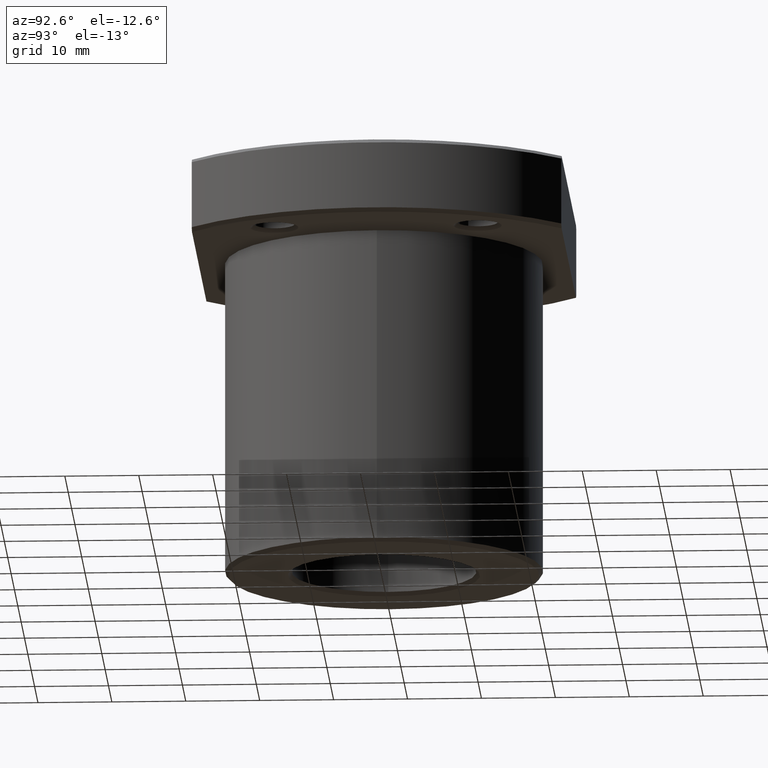
[diagram: clean part render]
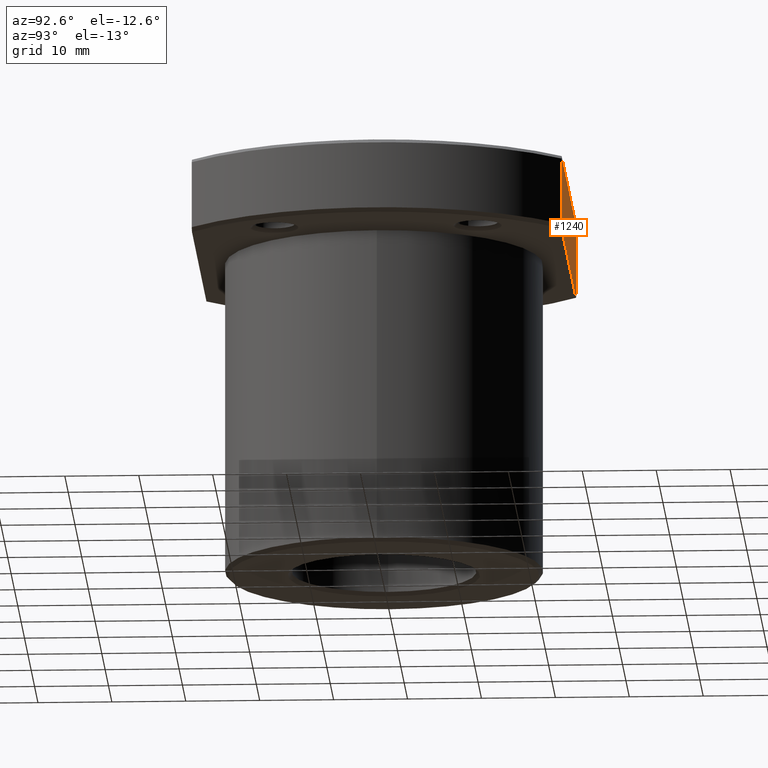
[diagram: same view with one face highlighted and labeled with its STEP entity id]
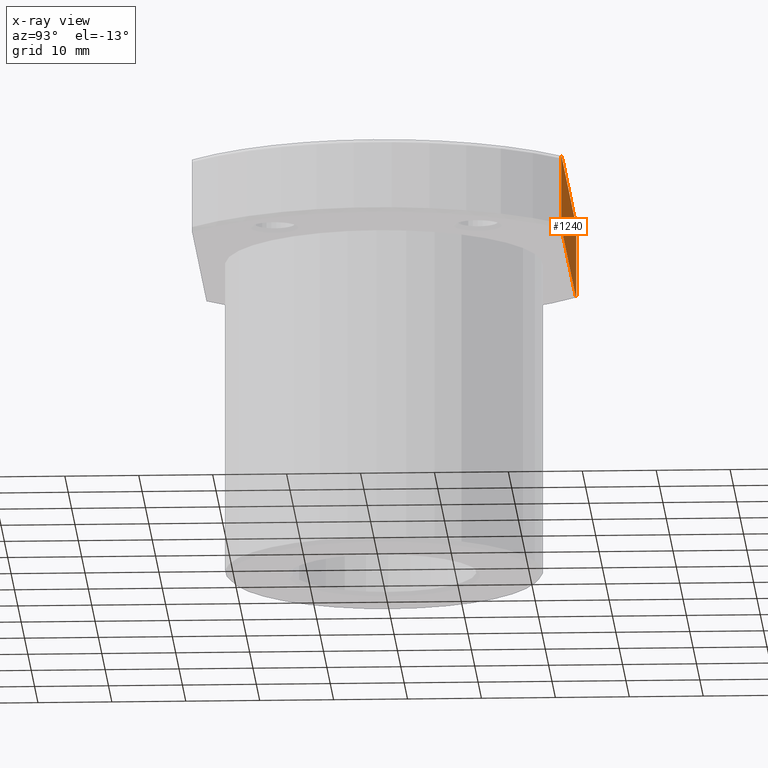
[diagram: x-ray of the same camera — body ghosted, the highlighted face saturated]
A machine part, auxiliary view. The second image highlights one B-rep face of the part: STEP entity #1240.
The next image is the same camera in x-ray: the body ghosted, the highlighted face saturated — about 0% of this face is hidden behind the body in this view.
In plain terms, the highlighted planar face has unit normal (0, -1, 0).
Its self-contained STEP definition (entity closure, byte-faithful):
#1220=AXIS2_PLACEMENT_3D('Plane Axis2P3D',#1217,#1218,#1219) ;
#851=CARTESIAN_POINT('Vertex',(21.5406592285,25.,53.)) ;
#866=CARTESIAN_POINT('Vertex',(22.299103121,25.,52.5)) ;
#870=CARTESIAN_POINT('Control Point',(22.299103121,25.,52.5)) ;
#871=CARTESIAN_POINT('Control Point',(22.0441034412,25.,52.6697392285)) ;
#872=CARTESIAN_POINT('Control Point',(21.7912860219,25.0000002817,52.8364038391)) ;
#873=CARTESIAN_POINT('Control Point',(21.5406589016,25.0000002817,53.)) ;
#891=CARTESIAN_POINT('Vertex',(-21.5406592285,25.,53.)) ;
#897=CARTESIAN_POINT('Control Point',(-22.299103121,25.,52.5)) ;
#898=CARTESIAN_POINT('Control Point',(-22.0441036981,25.,52.6697390575)) ;
#899=CARTESIAN_POINT('Control Point',(-21.7912863985,24.9999997418,52.8364039975)) ;
#900=CARTESIAN_POINT('Control Point',(-21.5406595282,24.9999997418,53.)) ;
#901=CARTESIAN_POINT('Vertex',(-22.299103121,25.,52.5)) ;
#929=CARTESIAN_POINT('Line Origine',(22.299103121,25.,48.)) ;
#933=CARTESIAN_POINT('Vertex',(22.299103121,25.,43.5)) ;
#961=CARTESIAN_POINT('Control Point',(22.2991034477,24.9999997086,43.5)) ;
#962=CARTESIAN_POINT('Control Point',(22.0441037667,24.9999997086,43.3302607682)) ;
#963=CARTESIAN_POINT('Control Point',(21.79128635,25.,43.1635961642)) ;
#964=CARTESIAN_POINT('Control Point',(21.5406592285,25.,43.)) ;
#965=CARTESIAN_POINT('Vertex',(21.5406592285,25.,43.)) ;
#1041=CARTESIAN_POINT('Line Origine',(3.5527136788E-015,25.,53.)) ;
#1147=CARTESIAN_POINT('Line Origine',(-22.299103121,25.,48.)) ;
#1151=CARTESIAN_POINT('Vertex',(-22.299103121,25.,43.5)) ;
#1175=CARTESIAN_POINT('Vertex',(-21.5406592285,25.,43.)) ;
#1180=CARTESIAN_POINT('Line Origine',(3.5527136788E-015,25.,43.)) ;
#1217=CARTESIAN_POINT('Axis2P3D Location',(-22.299103121,25.,43.)) ;
#1223=CARTESIAN_POINT('Control Point',(-22.299103121,25.,43.5)) ;
#1224=CARTESIAN_POINT('Control Point',(-22.1461034681,25.,43.3981565674)) ;
#1225=CARTESIAN_POINT('Control Point',(-21.9937619802,25.,43.2972376869)) ;
#1226=CARTESIAN_POINT('Control Point',(-21.8420646648,25.,43.197233163)) ;
#1227=CARTESIAN_POINT('Control Point',(-21.6910353499,25.,43.0981575996)) ;
#1228=CARTESIAN_POINT('Control Point',(-21.5406592285,25.,43.)) ;
#930=DIRECTION('Vector Direction',(0.,0.,1.)) ;
#1042=DIRECTION('Vector Direction',(1.,0.,0.)) ;
#1148=DIRECTION('Vector Direction',(0.,0.,1.)) ;
#1181=DIRECTION('Vector Direction',(1.,0.,0.)) ;
#1218=DIRECTION('Axis2P3D Direction',(0.,-1.,0.)) ;
#1219=DIRECTION('Axis2P3D XDirection',(1.,0.,0.)) ;
#931=VECTOR('Line Direction',#930,1.) ;
#1043=VECTOR('Line Direction',#1042,1.) ;
#1149=VECTOR('Line Direction',#1148,1.) ;
#1182=VECTOR('Line Direction',#1181,1.) ;
#1231=ORIENTED_EDGE('',*,*,#1229,.F.) ;
#1232=ORIENTED_EDGE('',*,*,#1153,.T.) ;
#1233=ORIENTED_EDGE('',*,*,#903,.F.) ;
#1234=ORIENTED_EDGE('',*,*,#1045,.F.) ;
#1235=ORIENTED_EDGE('',*,*,#874,.F.) ;
#1236=ORIENTED_EDGE('',*,*,#935,.F.) ;
#1237=ORIENTED_EDGE('',*,*,#967,.F.) ;
#1238=ORIENTED_EDGE('',*,*,#1184,.T.) ;
#1240=ADVANCED_FACE('',(#1239),#1221,.F.) ;
#869=B_SPLINE_CURVE_WITH_KNOTS('',3,(#870,#871,#872,#873),.UNSPECIFIED.,.F.,.U.,(4,4),(0.,2.06574564086),.UNSPECIFIED.) ;
#896=B_SPLINE_CURVE_WITH_KNOTS('',3,(#897,#898,#899,#900),.UNSPECIFIED.,.F.,.U.,(4,4),(0.,2.06574355977),.UNSPECIFIED.) ;
#960=B_SPLINE_CURVE_WITH_KNOTS('',3,(#961,#962,#963,#964),.UNSPECIFIED.,.F.,.U.,(4,4),(0.,2.06574563996),.UNSPECIFIED.) ;
#1222=B_SPLINE_CURVE_WITH_KNOTS('',5,(#1223,#1224,#1225,#1226,#1227,#1228),.UNSPECIFIED.,.F.,.U.,(6,6),(0.,2.06574355888),.UNSPECIFIED.) ;
#874=EDGE_CURVE('',#867,#852,#869,.T.) ;
#903=EDGE_CURVE('',#892,#902,#896,.F.) ;
#935=EDGE_CURVE('',#934,#867,#932,.T.) ;
#967=EDGE_CURVE('',#966,#934,#960,.F.) ;
#1045=EDGE_CURVE('',#852,#892,#1044,.F.) ;
#1153=EDGE_CURVE('',#1152,#902,#1150,.T.) ;
#1184=EDGE_CURVE('',#966,#1176,#1183,.F.) ;
#1229=EDGE_CURVE('',#1152,#1176,#1222,.T.) ;
#1230=EDGE_LOOP('',(#1231,#1232,#1233,#1234,#1235,#1236,#1237,#1238)) ;
#1239=FACE_OUTER_BOUND('',#1230,.T.) ;
#932=LINE('Line',#929,#931) ;
#1044=LINE('Line',#1041,#1043) ;
#1150=LINE('Line',#1147,#1149) ;
#1183=LINE('Line',#1180,#1182) ;
#1221=PLANE('Plane',#1220) ;
#852=VERTEX_POINT('',#851) ;
#867=VERTEX_POINT('',#866) ;
#892=VERTEX_POINT('',#891) ;
#902=VERTEX_POINT('',#901) ;
#934=VERTEX_POINT('',#933) ;
#966=VERTEX_POINT('',#965) ;
#1152=VERTEX_POINT('',#1151) ;
#1176=VERTEX_POINT('',#1175) ;